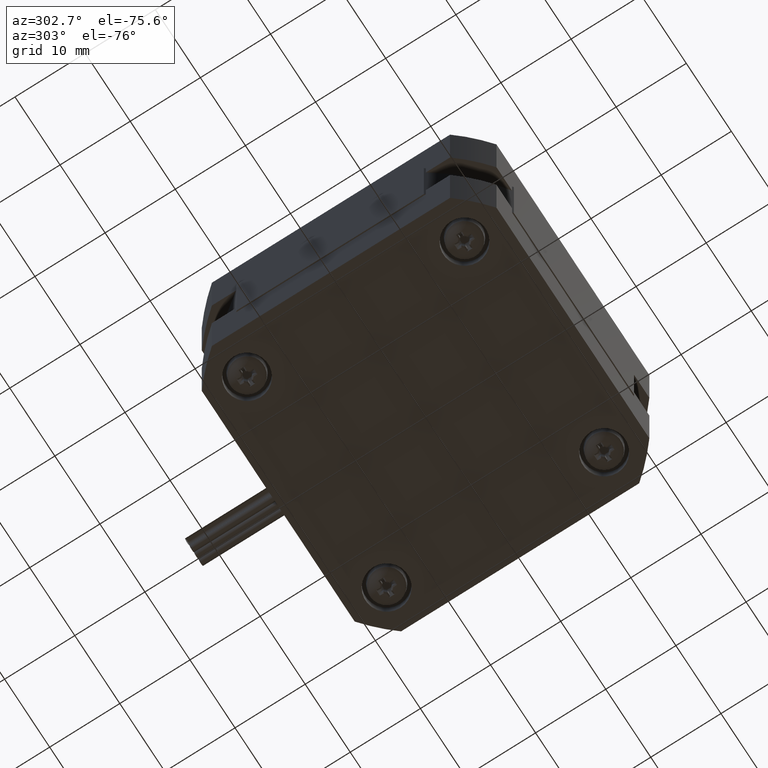
[diagram: clean part render]
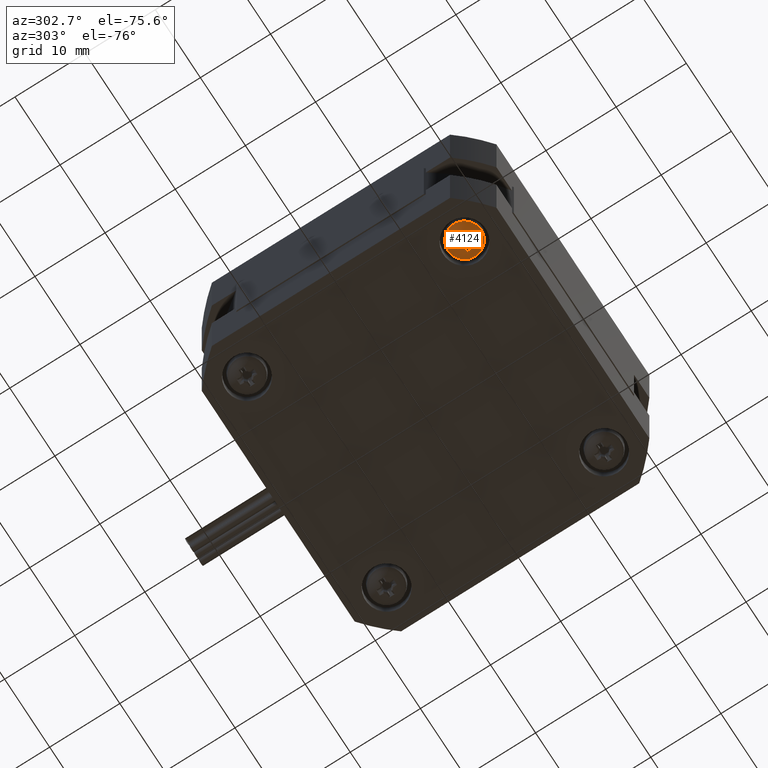
[diagram: same view with one face highlighted and labeled with its STEP entity id]
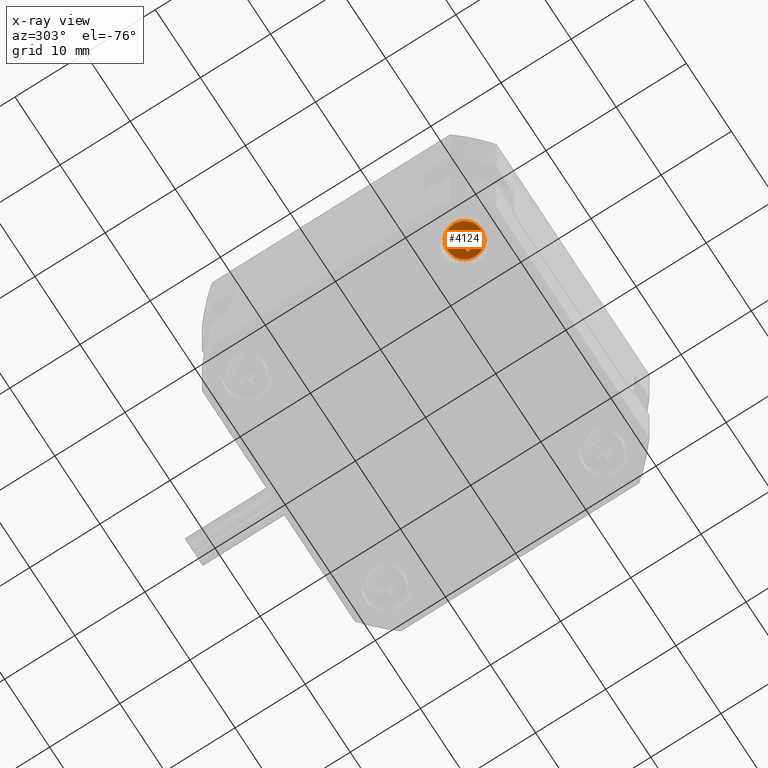
[diagram: x-ray of the same camera — body ghosted, the highlighted face saturated]
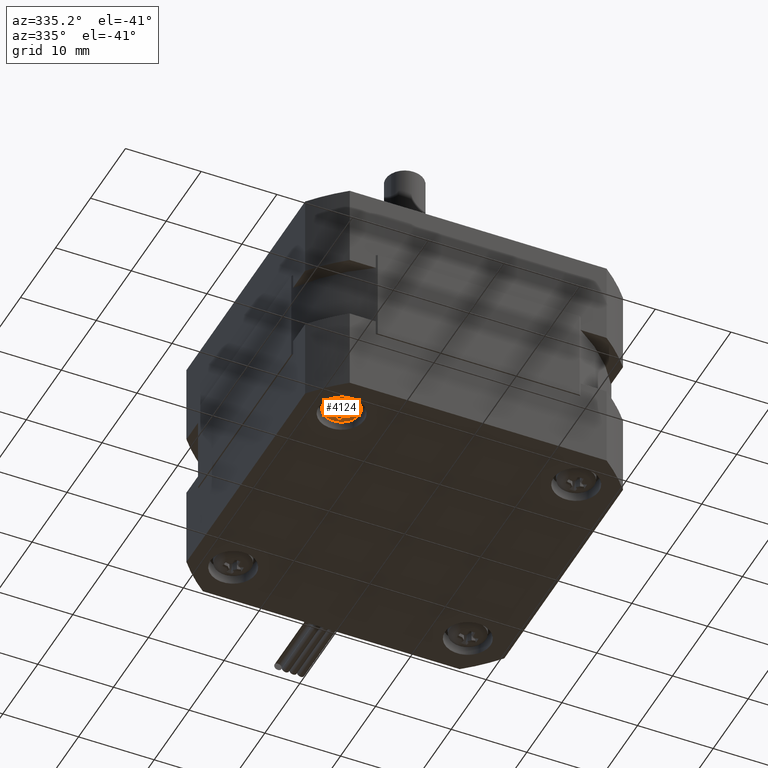
[diagram: same view with one face highlighted and labeled with its STEP entity id]
A machine part, auxiliary view. The second image highlights one B-rep face of the part: STEP entity #4124.
The next image is the same camera in x-ray: the body ghosted, the highlighted face saturated — about 0% of this face is hidden behind the body in this view.
A second angle (auxiliary view) of the same face is appended — the face is thin or edge-on in the first view.
In plain terms, the highlighted spherical surface has radius 3.8821 mm.
Its self-contained STEP definition (entity closure, byte-faithful):
#19=SPHERICAL_SURFACE('',#4581,3.88210938843687);
#798=FACE_BOUND('',#1371,.T.);
#1054=FACE_OUTER_BOUND('',#1370,.T.);
#1370=EDGE_LOOP('',(#3438,#3439,#3440,#3441,#3442,#3443,#3444,#3445,#3446,
#3447,#3448,#3449,#3450,#3451,#3452,#3453));
#1371=EDGE_LOOP('',(#3454));
#1606=CIRCLE('',#4534,3.86100306248017);
#1607=CIRCLE('',#4536,3.80538092555681);
#1610=CIRCLE('',#4541,3.86100306248016);
#1612=CIRCLE('',#4546,3.86100306248016);
#1613=CIRCLE('',#4548,3.80538092555681);
#1616=CIRCLE('',#4553,3.86100306248016);
#1618=CIRCLE('',#4559,3.86100306248016);
#1619=CIRCLE('',#4561,3.80538092555681);
#1622=CIRCLE('',#4566,3.86100306248016);
#1624=CIRCLE('',#4571,3.86100306248016);
#1625=CIRCLE('',#4573,3.80538092555681);
#1628=CIRCLE('',#4578,3.86100306248016);
#1629=CIRCLE('',#4582,3.80485319202448);
#1630=CIRCLE('',#4583,3.80485319202448);
#1631=CIRCLE('',#4584,3.80485319202448);
#1632=CIRCLE('',#4585,3.80485319202448);
#1633=CIRCLE('',#4586,2.3862647374163);
#1931=VERTEX_POINT('',#6810);
#1932=VERTEX_POINT('',#6814);
#1934=VERTEX_POINT('',#6823);
#1936=VERTEX_POINT('',#6832);
#1945=VERTEX_POINT('',#6857);
#1946=VERTEX_POINT('',#6861);
#1948=VERTEX_POINT('',#6870);
#1950=VERTEX_POINT('',#6879);
#1959=VERTEX_POINT('',#6906);
#1960=VERTEX_POINT('',#6910);
#1962=VERTEX_POINT('',#6919);
#1964=VERTEX_POINT('',#6928);
#1973=VERTEX_POINT('',#6953);
#1974=VERTEX_POINT('',#6957);
#1976=VERTEX_POINT('',#6966);
#1978=VERTEX_POINT('',#6975);
#1985=VERTEX_POINT('',#7001);
#2427=EDGE_CURVE('',#1931,#1932,#1606,.T.);
#2430=EDGE_CURVE('',#1932,#1934,#1607,.T.);
#2436=EDGE_CURVE('',#1934,#1936,#1610,.T.);
#2445=EDGE_CURVE('',#1945,#1946,#1612,.T.);
#2448=EDGE_CURVE('',#1946,#1948,#1613,.T.);
#2454=EDGE_CURVE('',#1948,#1950,#1616,.T.);
#2464=EDGE_CURVE('',#1959,#1960,#1618,.T.);
#2467=EDGE_CURVE('',#1960,#1962,#1619,.T.);
#2473=EDGE_CURVE('',#1962,#1964,#1622,.T.);
#2482=EDGE_CURVE('',#1973,#1974,#1624,.T.);
#2485=EDGE_CURVE('',#1974,#1976,#1625,.T.);
#2491=EDGE_CURVE('',#1976,#1978,#1628,.T.);
#2498=EDGE_CURVE('',#1978,#1931,#1629,.T.);
#2499=EDGE_CURVE('',#1964,#1973,#1630,.T.);
#2500=EDGE_CURVE('',#1950,#1959,#1631,.T.);
#2501=EDGE_CURVE('',#1936,#1945,#1632,.T.);
#2502=EDGE_CURVE('',#1985,#1985,#1633,.T.);
#3438=ORIENTED_EDGE('',*,*,#2498,.F.);
#3439=ORIENTED_EDGE('',*,*,#2491,.F.);
#3440=ORIENTED_EDGE('',*,*,#2485,.F.);
#3441=ORIENTED_EDGE('',*,*,#2482,.F.);
#3442=ORIENTED_EDGE('',*,*,#2499,.F.);
#3443=ORIENTED_EDGE('',*,*,#2473,.F.);
#3444=ORIENTED_EDGE('',*,*,#2467,.F.);
#3445=ORIENTED_EDGE('',*,*,#2464,.F.);
#3446=ORIENTED_EDGE('',*,*,#2500,.F.);
#3447=ORIENTED_EDGE('',*,*,#2454,.F.);
#3448=ORIENTED_EDGE('',*,*,#2448,.F.);
#3449=ORIENTED_EDGE('',*,*,#2445,.F.);
#3450=ORIENTED_EDGE('',*,*,#2501,.F.);
#3451=ORIENTED_EDGE('',*,*,#2436,.F.);
#3452=ORIENTED_EDGE('',*,*,#2430,.F.);
#3453=ORIENTED_EDGE('',*,*,#2427,.F.);
#3454=ORIENTED_EDGE('',*,*,#2502,.F.);
#4124=ADVANCED_FACE('',(#1054,#798),#19,.T.);
#4534=AXIS2_PLACEMENT_3D('',#6815,#5527,#5528);
#4536=AXIS2_PLACEMENT_3D('',#6824,#5532,#5533);
#4541=AXIS2_PLACEMENT_3D('',#6840,#5542,#5543);
#4546=AXIS2_PLACEMENT_3D('',#6862,#5558,#5559);
#4548=AXIS2_PLACEMENT_3D('',#6871,#5563,#5564);
#4553=AXIS2_PLACEMENT_3D('',#6887,#5573,#5574);
#4559=AXIS2_PLACEMENT_3D('',#6911,#5592,#5593);
#4561=AXIS2_PLACEMENT_3D('',#6920,#5597,#5598);
#4566=AXIS2_PLACEMENT_3D('',#6936,#5607,#5608);
#4571=AXIS2_PLACEMENT_3D('',#6958,#5623,#5624);
#4573=AXIS2_PLACEMENT_3D('',#6967,#5628,#5629);
#4578=AXIS2_PLACEMENT_3D('',#6983,#5638,#5639);
#4581=AXIS2_PLACEMENT_3D('',#6996,#5650,#5651);
#4582=AXIS2_PLACEMENT_3D('',#6997,#5652,#5653);
#4583=AXIS2_PLACEMENT_3D('',#6998,#5654,#5655);
#4584=AXIS2_PLACEMENT_3D('',#6999,#5656,#5657);
#4585=AXIS2_PLACEMENT_3D('',#7000,#5658,#5659);
#4586=AXIS2_PLACEMENT_3D('',#7002,#5660,#5661);
#5527=DIRECTION('center_axis',(-0.999999607794824,-0.000885669350001061,
3.7827046303108E-22));
#5528=DIRECTION('ref_axis',(-3.7011993433094E-22,-9.20284061211341E-21,
-1.));
#5532=DIRECTION('center_axis',(-0.706480241052334,-0.707732766658883,6.77463426795614E-21));
#5533=DIRECTION('ref_axis',(-3.7011993433094E-22,-9.20284061211341E-21,
-1.));
#5542=DIRECTION('center_axis',(0.000885669350000839,-0.999999607794824,
9.20250919883002E-21));
#5543=DIRECTION('ref_axis',(-3.7011993433094E-22,-9.20284061211341E-21,
-1.));
#5558=DIRECTION('center_axis',(-0.000885669350000839,0.999999607794824,
-9.20250919883002E-21));
#5559=DIRECTION('ref_axis',(-3.7011993433094E-22,-9.20284061211341E-21,
-1.));
#5563=DIRECTION('center_axis',(-0.707732766658883,0.706480241052334,-6.23967904889244E-21));
#5564=DIRECTION('ref_axis',(-3.7011993433094E-22,-9.20284061211341E-21,
-1.));
#5573=DIRECTION('center_axis',(-0.999999607794824,-0.000885669350001061,
3.7827046303108E-22));
#5574=DIRECTION('ref_axis',(-3.7011993433094E-22,-9.20284061211341E-21,
-1.));
#5592=DIRECTION('center_axis',(0.999999607794824,0.000885669350001061,-3.7827046303108E-22));
#5593=DIRECTION('ref_axis',(-3.7011993433094E-22,-9.20284061211341E-21,
-1.));
#5597=DIRECTION('center_axis',(0.706480241052333,0.707732766658883,-6.77463426795614E-21));
#5598=DIRECTION('ref_axis',(-3.7011993433094E-22,-9.20284061211341E-21,
-1.));
#5607=DIRECTION('center_axis',(-0.000885669350000962,0.999999607794824,
-9.20250919883002E-21));
#5608=DIRECTION('ref_axis',(-3.7011993433094E-22,-9.20284061211341E-21,
-1.));
#5623=DIRECTION('center_axis',(0.000885669350000839,-0.999999607794824,
9.20250919883002E-21));
#5624=DIRECTION('ref_axis',(-3.7011993433094E-22,-9.20284061211341E-21,
-1.));
#5628=DIRECTION('center_axis',(0.707732766658883,-0.706480241052334,6.23967904889244E-21));
#5629=DIRECTION('ref_axis',(-3.7011993433094E-22,-9.20284061211341E-21,
-1.));
#5638=DIRECTION('center_axis',(0.999999607794824,0.000885669350001061,-3.7827046303108E-22));
#5639=DIRECTION('ref_axis',(-3.7011993433094E-22,-9.20284061211341E-21,
-1.));
#5650=DIRECTION('center_axis',(0.,0.,-1.));
#5651=DIRECTION('ref_axis',(0.999999607794824,0.000885669350000791,0.));
#5652=DIRECTION('center_axis',(0.000767154024975952,-0.86618524632613,-0.499722453489577));
#5653=DIRECTION('ref_axis',(0.000442588860562939,-0.499722257495845,0.8661855860486));
#5654=DIRECTION('center_axis',(0.86618524632613,0.000767154024975866,-0.499722453489577));
#5655=DIRECTION('ref_axis',(-0.499722257495845,-0.000442588860562939,-0.8661855860486));
#5656=DIRECTION('center_axis',(-0.000767154024975952,0.86618524632613,-0.499722453489577));
#5657=DIRECTION('ref_axis',(0.000442588860562939,-0.499722257495845,-0.8661855860486));
#5658=DIRECTION('center_axis',(-0.86618524632613,-0.00076715402497576,-0.499722453489577));
#5659=DIRECTION('ref_axis',(-0.499722257495845,-0.000442588860562939,0.8661855860486));
#5660=DIRECTION('center_axis',(-1.09705419325712E-16,-8.79602527254091E-20,
1.));
#5661=DIRECTION('ref_axis',(-0.999999607794824,-0.000885669350000839,3.78270463031078E-22));
#6810=CARTESIAN_POINT('',(-15.0968203210686,-14.2765402637689,-24.4000437656663));
#6814=CARTESIAN_POINT('',(-15.0963409738329,-14.8177660019307,-24.5382050020132));
#6815=CARTESIAN_POINT('Origin',(-15.0957370569625,-15.4996419565616,-20.7378906115631));
#6823=CARTESIAN_POINT('',(-14.8184820888075,-15.0951331400922,-24.5382050020132));
#6824=CARTESIAN_POINT('Origin',(-14.9574115313202,-14.9564495710114,-20.7378906115631));
#6832=CARTESIAN_POINT('',(-14.2772563506457,-15.0946537928564,-24.4000437656663));
#6840=CARTESIAN_POINT('Origin',(-15.5003580434384,-15.0957370569625,-20.7378906115631));
#6857=CARTESIAN_POINT('',(-14.2765402637688,-15.9031796789314,-24.4000437656663));
#6861=CARTESIAN_POINT('',(-14.8177660019307,-15.9036590261672,-24.5382050020132));
#6862=CARTESIAN_POINT('Origin',(-15.4996419565616,-15.9042629430376,-20.7378906115631));
#6870=CARTESIAN_POINT('',(-15.0951331400921,-16.1815179111926,-24.5382050020132));
#6871=CARTESIAN_POINT('Origin',(-14.9564495710114,-16.0425884686799,-20.7378906115631));
#6879=CARTESIAN_POINT('',(-15.0946537928564,-16.7227436493544,-24.4000437656663));
#6887=CARTESIAN_POINT('Origin',(-15.0957370569625,-15.4996419565616,-20.7378906115631));
#6906=CARTESIAN_POINT('',(-15.9031796789314,-16.7234597362312,-24.4000437656663));
#6910=CARTESIAN_POINT('',(-15.9036590261672,-16.1822339980694,-24.5382050020132));
#6911=CARTESIAN_POINT('Origin',(-15.9042629430375,-15.5003580434385,-20.7378906115631));
#6919=CARTESIAN_POINT('',(-16.1815179111926,-15.9048668599079,-24.5382050020132));
#6920=CARTESIAN_POINT('Origin',(-16.0425884686799,-16.0435504289887,-20.7378906115631));
#6928=CARTESIAN_POINT('',(-16.7227436493544,-15.9053462071437,-24.4000437656663));
#6936=CARTESIAN_POINT('Origin',(-15.4996419565616,-15.9042629430376,-20.7378906115631));
#6953=CARTESIAN_POINT('',(-16.7234597362312,-15.0968203210686,-24.4000437656663));
#6957=CARTESIAN_POINT('',(-16.1822339980694,-15.0963409738329,-24.5382050020132));
#6958=CARTESIAN_POINT('Origin',(-15.5003580434384,-15.0957370569625,-20.7378906115631));
#6966=CARTESIAN_POINT('',(-15.9048668599079,-14.8184820888075,-24.5382050020132));
#6967=CARTESIAN_POINT('Origin',(-16.0435504289887,-14.9574115313202,-20.7378906115631));
#6975=CARTESIAN_POINT('',(-15.9053462071436,-14.2772563506457,-24.4000437656663));
#6983=CARTESIAN_POINT('Origin',(-15.9042629430375,-15.5003580434385,-20.7378906115631));
#6996=CARTESIAN_POINT('Origin',(-15.5,-15.5,-20.7378906115631));
#6997=CARTESIAN_POINT('Origin',(-15.4994088106352,-16.167505466825,-21.1229900703848));
#6998=CARTESIAN_POINT('Origin',(-14.8324945331751,-15.4994088106353,-21.1229900703848));
#6999=CARTESIAN_POINT('Origin',(-15.5005911893648,-14.8324945331751,-21.1229900703848));
#7000=CARTESIAN_POINT('Origin',(-16.167505466825,-15.5005911893648,-21.1229900703848));
#7001=CARTESIAN_POINT('',(-17.8862638015109,-15.502113441539,-23.8));
#7002=CARTESIAN_POINT('Origin',(-15.5,-15.5,-23.8));